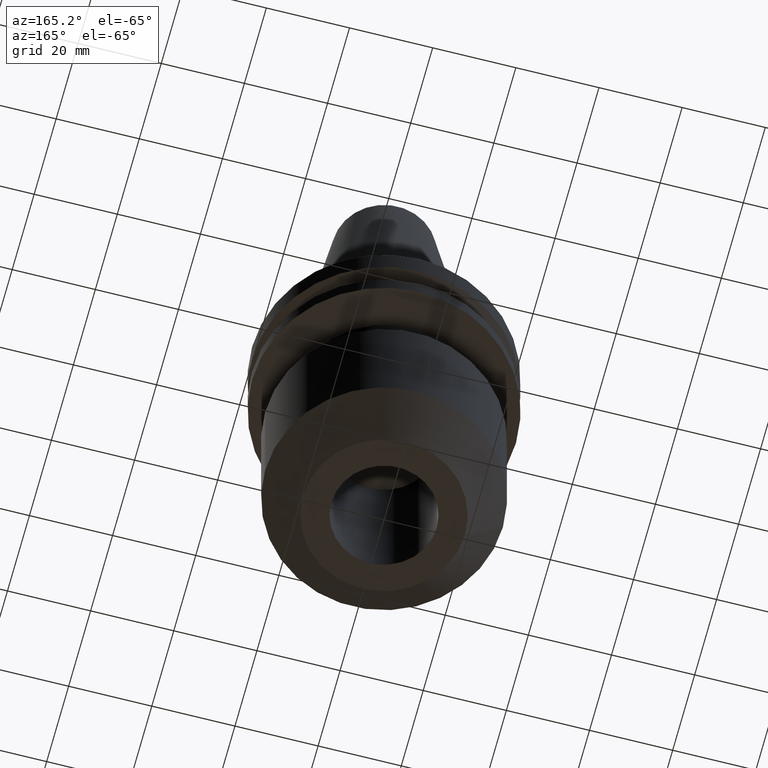
[diagram: clean part render]
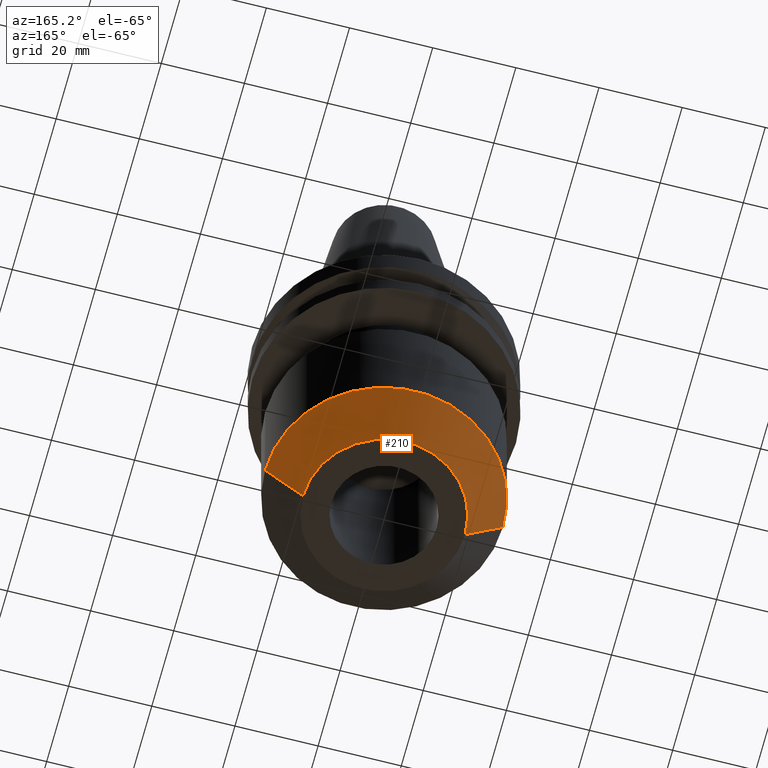
[diagram: same view with one face highlighted and labeled with its STEP entity id]
A machine part, auxiliary view. The second image highlights one B-rep face of the part: STEP entity #210.
In plain terms, the highlighted conical surface has half-angle 45 deg.
Its self-contained STEP definition (entity closure, byte-faithful):
#4 = EDGE_CURVE ( 'NONE', #633, #787, #122, .T. ) ;
#40 = CIRCLE ( 'NONE', #228, 19.49999999999997158 ) ;
#41 = DIRECTION ( 'NONE',  ( -0.000000000000000000, -0.000000000000000000, 1.000000000000000000 ) ) ;
#65 = AXIS2_PLACEMENT_3D ( 'NONE', #811, #749, #166 ) ;
#122 = LINE ( 'NONE', #133, #475 ) ;
#133 = CARTESIAN_POINT ( 'NONE',  ( 19.49999999999997158, 0.000000000000000000, -76.20000000000000284 ) ) ;
#166 = DIRECTION ( 'NONE',  ( 1.000000000000000000, 0.000000000000000000, 0.000000000000000000 ) ) ;
#210 = ADVANCED_FACE ( 'NONE', ( #357 ), #436, .T. ) ;
#226 = CARTESIAN_POINT ( 'NONE',  ( -28.60000000000000142, 3.502489845561430207E-15, -67.10000000000000853 ) ) ;
#228 = AXIS2_PLACEMENT_3D ( 'NONE', #299, #41, #509 ) ;
#235 = EDGE_LOOP ( 'NONE', ( #682, #732, #758, #377 ) ) ;
#254 = EDGE_CURVE ( 'NONE', #517, #294, #289, .T. ) ;
#289 = LINE ( 'NONE', #346, #839 ) ;
#294 = VERTEX_POINT ( 'NONE', #226 ) ;
#299 = CARTESIAN_POINT ( 'NONE',  ( 0.000000000000000000, 0.000000000000000000, -76.20000000000000284 ) ) ;
#346 = CARTESIAN_POINT ( 'NONE',  ( -19.49999999999997158, 2.388061258337335389E-15, -76.20000000000000284 ) ) ;
#357 = FACE_OUTER_BOUND ( 'NONE', #235, .T. ) ;
#359 = EDGE_CURVE ( 'NONE', #787, #294, #741, .T. ) ;
#377 = ORIENTED_EDGE ( 'NONE', *, *, #4, .F. ) ;
#391 = DIRECTION ( 'NONE',  ( 0.7071067811865487940, 0.000000000000000000, 0.7071067811865463515 ) ) ;
#392 = EDGE_CURVE ( 'NONE', #633, #517, #40, .T. ) ;
#436 = CONICAL_SURFACE ( 'NONE', #65, 19.49999999999997158, 0.7853981633974500554 ) ;
#475 = VECTOR ( 'NONE', #391, 1000.000000000000000 ) ;
#509 = DIRECTION ( 'NONE',  ( 1.000000000000000000, 0.000000000000000000, 0.000000000000000000 ) ) ;
#517 = VERTEX_POINT ( 'NONE', #648 ) ;
#619 = CARTESIAN_POINT ( 'NONE',  ( 19.49999999999997158, 0.000000000000000000, -76.20000000000000284 ) ) ;
#633 = VERTEX_POINT ( 'NONE', #619 ) ;
#645 = DIRECTION ( 'NONE',  ( -0.000000000000000000, -0.000000000000000000, 1.000000000000000000 ) ) ;
#648 = CARTESIAN_POINT ( 'NONE',  ( -19.49999999999997158, 2.945275551949382995E-15, -76.20000000000000284 ) ) ;
#675 = DIRECTION ( 'NONE',  ( -0.7071067811865487940, 8.659560562354948882E-17, 0.7071067811865463515 ) ) ;
#682 = ORIENTED_EDGE ( 'NONE', *, *, #392, .T. ) ;
#698 = CARTESIAN_POINT ( 'NONE',  ( 28.60000000000000142, 0.000000000000000000, -67.10000000000000853 ) ) ;
#706 = DIRECTION ( 'NONE',  ( 1.000000000000000000, 0.000000000000000000, 0.000000000000000000 ) ) ;
#732 = ORIENTED_EDGE ( 'NONE', *, *, #254, .T. ) ;
#738 = AXIS2_PLACEMENT_3D ( 'NONE', #765, #645, #706 ) ;
#741 = CIRCLE ( 'NONE', #738, 28.60000000000000142 ) ;
#749 = DIRECTION ( 'NONE',  ( -0.000000000000000000, -0.000000000000000000, 1.000000000000000000 ) ) ;
#758 = ORIENTED_EDGE ( 'NONE', *, *, #359, .F. ) ;
#765 = CARTESIAN_POINT ( 'NONE',  ( 0.000000000000000000, 0.000000000000000000, -67.10000000000000853 ) ) ;
#787 = VERTEX_POINT ( 'NONE', #698 ) ;
#811 = CARTESIAN_POINT ( 'NONE',  ( 0.000000000000000000, 0.000000000000000000, -76.20000000000000284 ) ) ;
#839 = VECTOR ( 'NONE', #675, 1000.000000000000000 ) ;